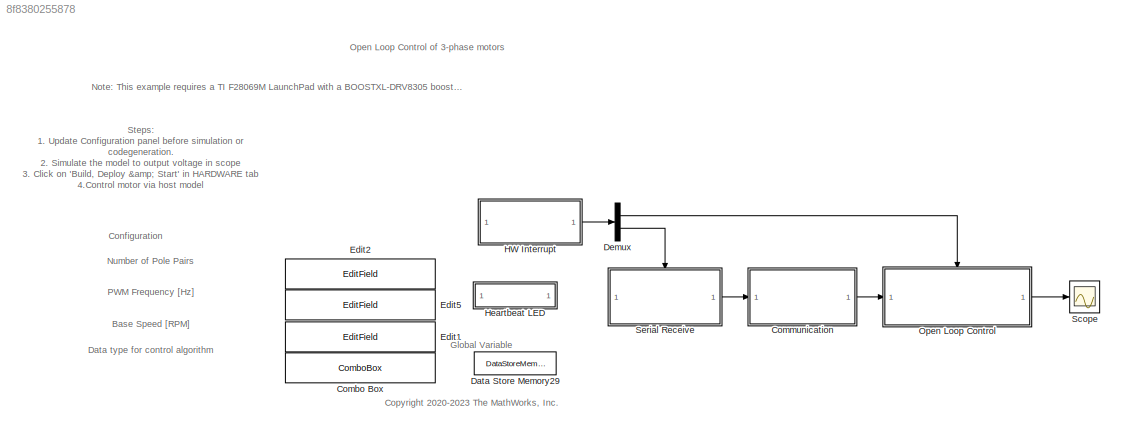
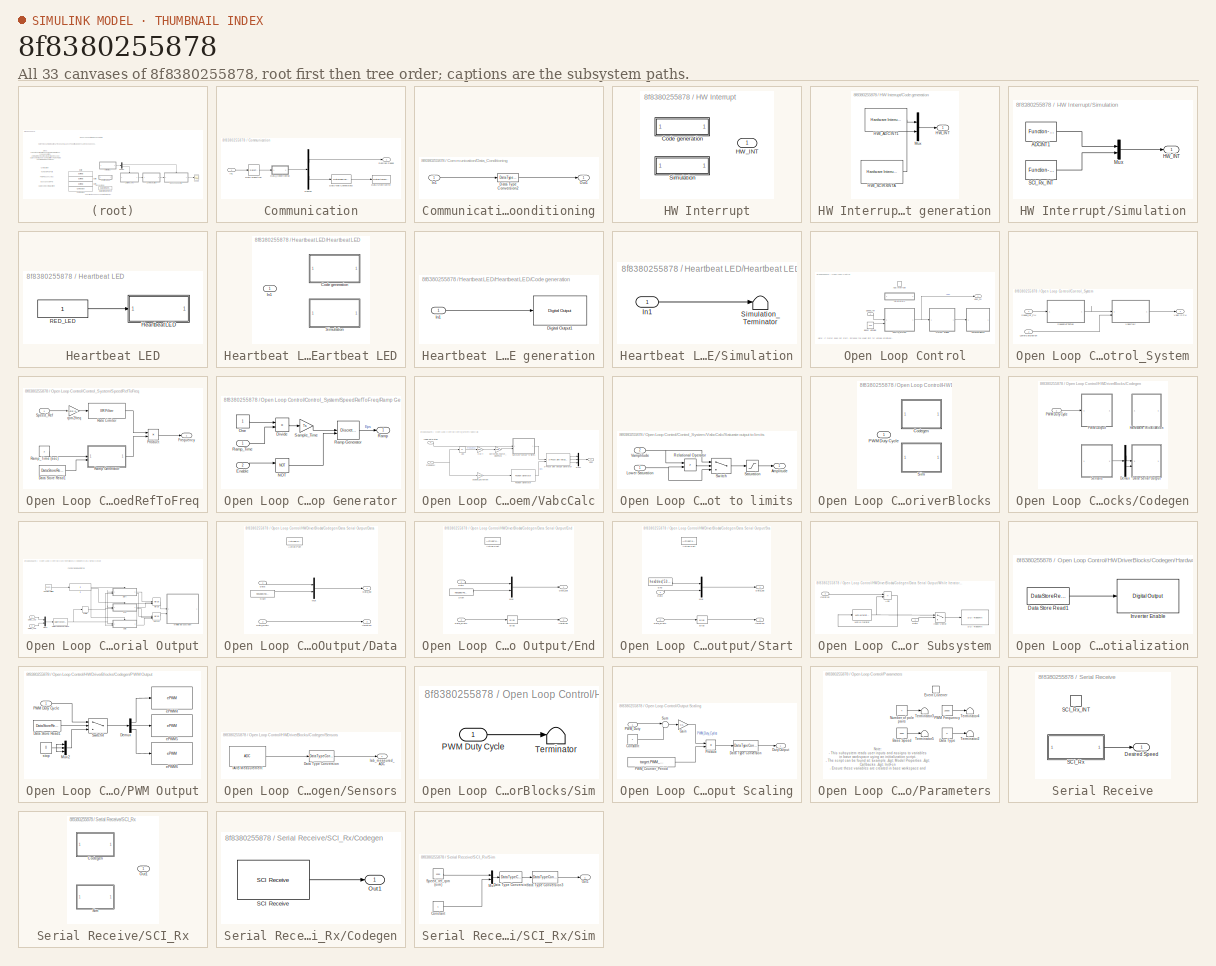
[diagram: thumbnail index - all 33 canvases of the model, root first then tree order]
MODEL slx_8f8380255878
KIND model
CONFIG AbsTol = auto
CONFIG EnableMultiTasking = on
CONFIG FixedStep = auto
CONFIG InitFcn = mcb_open_loop_control_data;\ntarget = mcb_SetProcessorDetails('F28069M',PWM_frequency);
CONFIG MaxStep = auto
CONFIG MinStep = auto
CONFIG RelTol = 1e-3
CONFIG SampleTimeConstraint = Unconstrained
CONFIG SolverName = FixedStepDiscrete
CONFIG StartTime = 0.0
CONFIG StopTime = 8
BLOCK [ComboBox] Combo Box
  LabelPosition = Hide
  SelectedLabel = single
BLOCK [SubSystem] Communication
BLOCK [DataStoreWrite] Communication/Data Store Write
  DataStoreName = Enable
  IndexOptions = Index vector (dialog)
  Indices = 1
  OutputSizes = 1
BLOCK [DataTypeConversion] Communication/Data Type Conversion3
  OutDataTypeStr = boolean
  RndMeth = Simplest
  SaturateOnIntegerOverflow = off
BLOCK [SubSystem] Communication/Data_Conditioning
BLOCK [DataTypeConversion] Communication/Data_Conditioning/Data Type Conversion2
  ConvertRealWorld = Stored Integer (SI)
  OutDataTypeStr = int16
  RndMeth = Simplest
  SaturateOnIntegerOverflow = off
BLOCK [Inport] Communication/Data_Conditioning/In1
BLOCK [Outport] Communication/Data_Conditioning/Out1
  VectorParamsAs1DForOutWhenUnconnected = off
BLOCK [Demux] Communication/Demux
  Outputs = 2
BLOCK [Outport] Communication/Desired Speed
  VectorParamsAs1DForOutWhenUnconnected = off
BLOCK [Inport] Communication/In1
BLOCK [RateTransition] Communication/Rate Transition
  Deterministic = off
  InitialCondition = [1228 0]
  OutPortSampleTime = Ts
BLOCK [DataStoreMemory] Data Store Memory29
  DataStoreName = Enable
  OutDataTypeStr = boolean
  ShowAdditionalParam = off
BLOCK [Demux] Demux
  Outputs = 2
BLOCK [EditField] Edit1
  Alignment = Center
  LabelPosition = Hide
  ShowInitialText = on
BLOCK [EditField] Edit2
  Alignment = Center
  LabelPosition = Hide
  ShowInitialText = on
BLOCK [EditField] Edit5
  Alignment = Center
  LabelPosition = Hide
  ShowInitialText = on
BLOCK [SubSystem] HW Interrupt
  Variant = on
  VariantControlMode = sim codegen switching
BLOCK [SubSystem] HW Interrupt/Code generation
  VariantControl = (codegen)
BLOCK [Reference] HW Interrupt/Code generation/HWI_ADCINT1  REF=svdschedulerlib/Hardware Interrupt v2
  LibrarySourceBlock = c2000lib/Scheduling/Hardware Interrupt
  SourceBlock = svdschedulerlib/Hardware Interrupt v2
  SourceType = HardwareInterrupt
  UserDataPersistent = on
BLOCK [Reference] HW Interrupt/Code generation/HWI_SCIRXINTA  REF=svdschedulerlib/Hardware Interrupt v2
  LibrarySourceBlock = c2000lib/Scheduling/Hardware Interrupt
  SourceBlock = svdschedulerlib/Hardware Interrupt v2
  SourceType = HardwareInterrupt
  UserDataPersistent = on
BLOCK [Outport] HW Interrupt/Code generation/HW_INT
BLOCK [Mux] HW Interrupt/Code generation/Mux
  DisplayOption = bar
  Inputs = 2
BLOCK [Outport] HW Interrupt/HW_INT
  OutputFunctionCall = on
BLOCK [SubSystem] HW Interrupt/Simulation
  VariantControl = (sim)
BLOCK [Reference] HW Interrupt/Simulation/ADCINT1  REF=simulink/Ports &
Subsystems/Function-Call
Generator
  SourceBlock = simulink/Ports &\nSubsystems/Function-Call\nGenerator
  SourceType = Function-Call Generator
BLOCK [Outport] HW Interrupt/Simulation/HW_INT
BLOCK [Mux] HW Interrupt/Simulation/Mux
  DisplayOption = bar
  Inputs = 2
BLOCK [Reference] HW Interrupt/Simulation/SCI_Rx_INT  REF=simulink/Ports &
Subsystems/Function-Call
Generator
  SourceBlock = simulink/Ports &\nSubsystems/Function-Call\nGenerator
  SourceType = Function-Call Generator
BLOCK [SubSystem] Heartbeat LED
  TreatAsAtomicUnit = on
BLOCK [SubSystem] Heartbeat LED/Heartbeat LED
  Variant = on
  VariantControlMode = sim codegen switching
BLOCK [SubSystem] Heartbeat LED/Heartbeat LED/Code generation
  VariantControl = (codegen)
BLOCK [Reference] Heartbeat LED/Heartbeat LED/Code generation/Digital Output1  REF=c2806xlib/Digital Output
  SourceBlock = c2806xlib/Digital Output
  SourceType = C2806x GPIO Digital Output
  UserDataPersistent = on
BLOCK [Inport] Heartbeat LED/Heartbeat LED/Code generation/In1
BLOCK [Inport] Heartbeat LED/Heartbeat LED/In1
BLOCK [SubSystem] Heartbeat LED/Heartbeat LED/Simulation
  VariantControl = (sim)
BLOCK [Inport] Heartbeat LED/Heartbeat LED/Simulation/In1
BLOCK [Terminator] Heartbeat LED/Heartbeat LED/Simulation/Simulation_Terminator
BLOCK [Constant] Heartbeat LED/RED_LED
  OutDataTypeStr = uint16
  SampleTime = 0.5
BLOCK [SubSystem] Open Loop Control
  RTWMemSecFuncExecute = code_ramfuncs
BLOCK [TriggerPort] Open Loop Control/ADC Interrupt
  StatesWhenEnabling = held
  TriggerType = function-call
  VariantControl = Variant
BLOCK [Constant] Open Loop Control/Boost Voltage
  OutDataTypeStr = dataType
  Value = 0.15
BLOCK [SubSystem] Open Loop Control/Control_System
BLOCK [Inport] Open Loop Control/Control_System/LowerSaturation
  Port = 2
BLOCK [SubSystem] Open Loop Control/Control_System/SpeedRefToFreq
BLOCK [DataStoreRead] Open Loop Control/Control_System/SpeedRefToFreq/Data Store Read1
  DataStoreName = Enable
  IndexOptions = Index vector (dialog)
  Indices = 1
  OutputSizes = 1
BLOCK [Outport] Open Loop Control/Control_System/SpeedRefToFreq/Frequency
BLOCK [Product] Open Loop Control/Control_System/SpeedRefToFreq/Product
  OutDataTypeStr = Inherit: Same as first input
  RndMeth = Simplest
BLOCK [SubSystem] Open Loop Control/Control_System/SpeedRefToFreq/Ramp Generator
BLOCK [Product] Open Loop Control/Control_System/SpeedRefToFreq/Ramp Generator/Divide
  Inputs = */
  OutDataTypeStr = Inherit: Same as first input
  RndMeth = Simplest
BLOCK [Inport] Open Loop Control/Control_System/SpeedRefToFreq/Ramp Generator/Enable
  Port = 2
BLOCK [Logic] Open Loop Control/Control_System/SpeedRefToFreq/Ramp Generator/NOT
  AllPortsSameDT = off
  IconShape = distinctive
  Operator = NOT
  OutDataTypeStr = boolean
BLOCK [Constant] Open Loop Control/Control_System/SpeedRefToFreq/Ramp Generator/One
  OutDataTypeStr = dataType
  SampleTime = -1
BLOCK [Outport] Open Loop Control/Control_System/SpeedRefToFreq/Ramp Generator/Ramp
BLOCK [DiscreteIntegrator] Open Loop Control/Control_System/SpeedRefToFreq/Ramp Generator/Ramp Generator
  ExternalReset = sampled level
  ICPrevOutput = DiscIntNeverNeededParam
  ICPrevScaledInput = DiscIntNeverNeededParam
  IntegratorMethod = Accumulation: Forward Euler
  LimitOutput = on
  LowerSaturationLimit = 0
  OutDataTypeStr = dataType
  RndMeth = Simplest
  SampleTime = -1
  UpperSaturationLimit = 1
  gainval = 1
BLOCK [Inport] Open Loop Control/Control_System/SpeedRefToFreq/Ramp Generator/Ramp_Time
BLOCK [Gain] Open Loop Control/Control_System/SpeedRefToFreq/Ramp Generator/Sample_Time
  Gain = Ts
  OutDataTypeStr = Inherit: Same as input
  RndMeth = Simplest
BLOCK [Constant] Open Loop Control/Control_System/SpeedRefToFreq/Ramp_Time (sec)
  OutDataTypeStr = dataType
  SampleTime = -1
  Value = 3
BLOCK [Reference] Open Loop Control/Control_System/SpeedRefToFreq/Rate Limiter  REF=mcbcontrolslib/IIR Filter
  SourceBlock = mcbcontrolslib/IIR Filter
  SourceType = IIR Filter
BLOCK [Inport] Open Loop Control/Control_System/SpeedRefToFreq/Speed_Ref
BLOCK [Gain] Open Loop Control/Control_System/SpeedRefToFreq/rpm2freq
  Gain = motor.polePairs/60
  OutDataTypeStr = dataType
  RndMeth = Simplest
BLOCK [Inport] Open Loop Control/Control_System/Speed_ref_PU
BLOCK [Outport] Open Loop Control/Control_System/Vabc in PU
  VectorParamsAs1DForOutWhenUnconnected = off
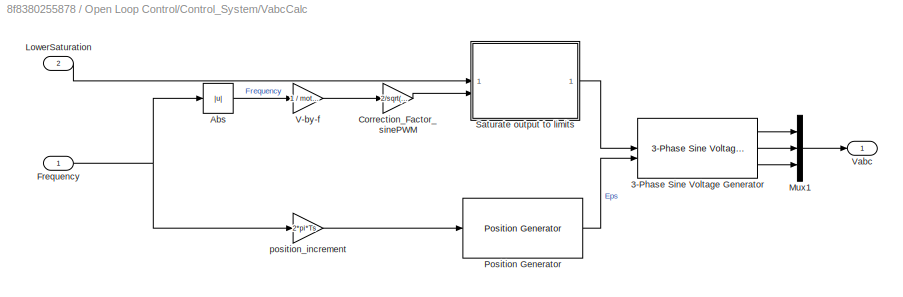
BLOCK [SubSystem] Open Loop Control/Control_System/VabcCalc
BLOCK [Reference] Open Loop Control/Control_System/VabcCalc/3-Phase Sine Voltage Generator  REF=mcbcontrolslib/3-Phase Sine Voltage Generator
  SourceBlock = mcbcontrolslib/3-Phase Sine Voltage Generator
  SourceType = 3-Phase Sine Voltage Generator
BLOCK [Abs] Open Loop Control/Control_System/VabcCalc/Abs
  RndMeth = Simplest
  SaturateOnIntegerOverflow = off
BLOCK [Gain] Open Loop Control/Control_System/VabcCalc/Correction_Factor_sinePWM
  Gain = 2/sqrt(3)
  OutDataTypeStr = Inherit: Same as input
  RndMeth = Simplest
BLOCK [Inport] Open Loop Control/Control_System/VabcCalc/Frequency
BLOCK [Inport] Open Loop Control/Control_System/VabcCalc/LowerSaturation
  Port = 2
BLOCK [Mux] Open Loop Control/Control_System/VabcCalc/Mux1
  DisplayOption = bar
  Inputs = 3
BLOCK [Reference] Open Loop Control/Control_System/VabcCalc/Position Generator  REF=mcbcontrolslib/Position Generator
  SourceBlock = mcbcontrolslib/Position Generator
  SourceType = Position Generator
BLOCK [SubSystem] Open Loop Control/Control_System/VabcCalc/Saturate output to limits
BLOCK [Outport] Open Loop Control/Control_System/VabcCalc/Saturate output to limits/Amplitude
BLOCK [Inport] Open Loop Control/Control_System/VabcCalc/Saturate output to limits/Lower Saturation
BLOCK [RelationalOperator] Open Loop Control/Control_System/VabcCalc/Saturate output to limits/Relational Operator
  InputSameDT = off
  Operator = >
  OutDataTypeStr = boolean
  RndMeth = Simplest
BLOCK [Saturate] Open Loop Control/Control_System/VabcCalc/Saturate output to limits/Saturation
  LowerLimit = 0
  RndMeth = Simplest
  UpperLimit = 0.95
BLOCK [Switch] Open Loop Control/Control_System/VabcCalc/Saturate output to limits/Switch
  Criteria = u2 > Threshold
  InputSameDT = off
  SaturateOnIntegerOverflow = off
BLOCK [Inport] Open Loop Control/Control_System/VabcCalc/Saturate output to limits/Vamplitude
  Port = 2
BLOCK [Gain] Open Loop Control/Control_System/VabcCalc/V-by-f
  Gain = 1 / motor.base_freq
  OutDataTypeStr = Inherit: Same as input
  RndMeth = Simplest
BLOCK [Outport] Open Loop Control/Control_System/VabcCalc/Vabc
BLOCK [Gain] Open Loop Control/Control_System/VabcCalc/position_increment
  Gain = 2*pi*Ts
  OutDataTypeStr = Inherit: Same as input
  RndMeth = Simplest
BLOCK [SubSystem] Open Loop Control/HWDriverBlocks
  Variant = on
  VariantControlMode = sim codegen switching
BLOCK [SubSystem] Open Loop Control/HWDriverBlocks/Codegen
  VariantControl = (codegen)
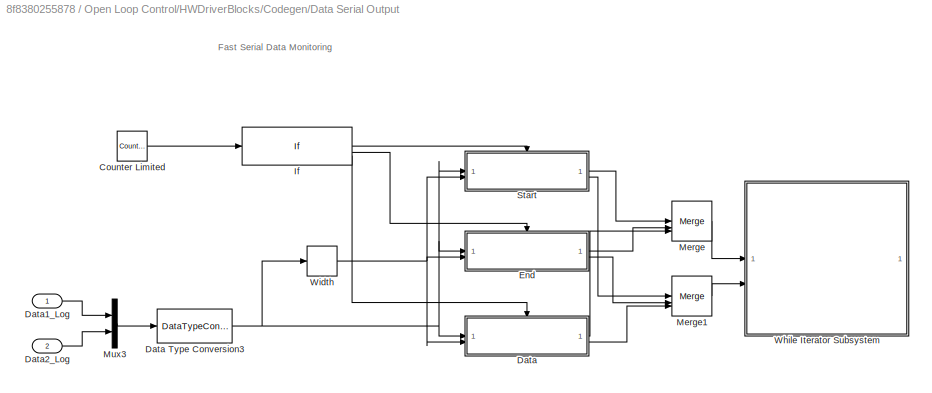
BLOCK [SubSystem] Open Loop Control/HWDriverBlocks/Codegen/Data Serial Output
BLOCK [Reference] Open Loop Control/HWDriverBlocks/Codegen/Data Serial Output/Counter Limited  REF=simulink/Sources/Counter
Limited
  SourceBlock = simulink/Sources/Counter\nLimited
  SourceType = Counter Limited
BLOCK [SubSystem] Open Loop Control/HWDriverBlocks/Codegen/Data Serial Output/Data
  TreatAsAtomicUnit = on
BLOCK [DataTypeConversion] Open Loop Control/HWDriverBlocks/Codegen/Data Serial Output/Data Type Conversion3
  ConvertRealWorld = Stored Integer (SI)
  OutDataTypeStr = uint16
  RndMeth = Floor
  SaturateOnIntegerOverflow = off
BLOCK [ActionPort] Open Loop Control/HWDriverBlocks/Codegen/Data Serial Output/Data/Action Port
BLOCK [Inport] Open Loop Control/HWDriverBlocks/Codegen/Data Serial Output/Data/Data
BLOCK [Outport] Open Loop Control/HWDriverBlocks/Codegen/Data Serial Output/Data/Data_out
  VectorParamsAs1DForOutWhenUnconnected = off
BLOCK [Inport] Open Loop Control/HWDriverBlocks/Codegen/Data Serial Output/Data/Data_width
  Port = 2
BLOCK [Outport] Open Loop Control/HWDriverBlocks/Codegen/Data Serial Output/Data/Iteration
  Port = 2
  VectorParamsAs1DForOutWhenUnconnected = off
BLOCK [Mux] Open Loop Control/HWDriverBlocks/Codegen/Data Serial Output/Data/Mux
  DisplayOption = bar
  Inputs = 2
BLOCK [Constant] Open Loop Control/HWDriverBlocks/Codegen/Data Serial Output/Data/Start
  OutDataTypeStr = uint16
  Value = hex2dec('0000')
BLOCK [Inport] Open Loop Control/HWDriverBlocks/Codegen/Data Serial Output/Data1_Log
BLOCK [Inport] Open Loop Control/HWDriverBlocks/Codegen/Data Serial Output/Data2_Log
  Port = 2
BLOCK [SubSystem] Open Loop Control/HWDriverBlocks/Codegen/Data Serial Output/End
  TreatAsAtomicUnit = on
BLOCK [ActionPort] Open Loop Control/HWDriverBlocks/Codegen/Data Serial Output/End/Action Port
BLOCK [Bias] Open Loop Control/HWDriverBlocks/Codegen/Data Serial Output/End/Bias
  Bias = 1
  SaturateOnIntegerOverflow = off
BLOCK [Inport] Open Loop Control/HWDriverBlocks/Codegen/Data Serial Output/End/Data
BLOCK [Outport] Open Loop Control/HWDriverBlocks/Codegen/Data Serial Output/End/Data_out
  VectorParamsAs1DForOutWhenUnconnected = off
BLOCK [Inport] Open Loop Control/HWDriverBlocks/Codegen/Data Serial Output/End/Data_width
  Port = 2
BLOCK [Outport] Open Loop Control/HWDriverBlocks/Codegen/Data Serial Output/End/Iteration
  Port = 2
  VectorParamsAs1DForOutWhenUnconnected = off
BLOCK [Mux] Open Loop Control/HWDriverBlocks/Codegen/Data Serial Output/End/Mux
  DisplayOption = bar
  Inputs = 2
BLOCK [Constant] Open Loop Control/HWDriverBlocks/Codegen/Data Serial Output/End/Start
  OutDataTypeStr = uint16
  Value = hex2dec('4545')
BLOCK [If] Open Loop Control/HWDriverBlocks/Codegen/Data Serial Output/If
  ElseIfExpressions = u1 == 599
  IfExpression = u1 == 0
BLOCK [Merge] Open Loop Control/HWDriverBlocks/Codegen/Data Serial Output/Merge
  Inputs = 3
BLOCK [Merge] Open Loop Control/HWDriverBlocks/Codegen/Data Serial Output/Merge1
  Inputs = 3
BLOCK [Mux] Open Loop Control/HWDriverBlocks/Codegen/Data Serial Output/Mux3
  DisplayOption = bar
  Inputs = 2
BLOCK [SubSystem] Open Loop Control/HWDriverBlocks/Codegen/Data Serial Output/Start
  TreatAsAtomicUnit = on
BLOCK [ActionPort] Open Loop Control/HWDriverBlocks/Codegen/Data Serial Output/Start/Action Port
BLOCK [Bias] Open Loop Control/HWDriverBlocks/Codegen/Data Serial Output/Start/Bias
  Bias = 1
  SaturateOnIntegerOverflow = off
BLOCK [Inport] Open Loop Control/HWDriverBlocks/Codegen/Data Serial Output/Start/Data
BLOCK [Outport] Open Loop Control/HWDriverBlocks/Codegen/Data Serial Output/Start/Data_out
  VectorParamsAs1DForOutWhenUnconnected = off
BLOCK [Inport] Open Loop Control/HWDriverBlocks/Codegen/Data Serial Output/Start/Data_width
  Port = 2
BLOCK [Constant] Open Loop Control/HWDriverBlocks/Codegen/Data Serial Output/Start/End
  OutDataTypeStr = uint16
  Value = hex2dec('5353')
BLOCK [Outport] Open Loop Control/HWDriverBlocks/Codegen/Data Serial Output/Start/Iteration
  Port = 2
  VectorParamsAs1DForOutWhenUnconnected = off
BLOCK [Mux] Open Loop Control/HWDriverBlocks/Codegen/Data Serial Output/Start/Mux
  DisplayOption = bar
  Inputs = 2
BLOCK [SubSystem] Open Loop Control/HWDriverBlocks/Codegen/Data Serial Output/While Iterator Subsystem
  TreatAsAtomicUnit = on
BLOCK [Sum] Open Loop Control/HWDriverBlocks/Codegen/Data Serial Output/While Iterator Subsystem/Add
  IconShape = rectangular
  Inputs = +-
  OutDataTypeStr = Inherit: Same as first input
BLOCK [Inport] Open Loop Control/HWDriverBlocks/Codegen/Data Serial Output/While Iterator Subsystem/Data
BLOCK [MultiPortSwitch] Open Loop Control/HWDriverBlocks/Codegen/Data Serial Output/While Iterator Subsystem/Index Vector
  InputSameDT = off
  Inputs = 1
  SaturateOnIntegerOverflow = off
BLOCK [Inport] Open Loop Control/HWDriverBlocks/Codegen/Data Serial Output/While Iterator Subsystem/Iteration
  Port = 2
BLOCK [Reference] Open Loop Control/HWDriverBlocks/Codegen/Data Serial Output/While Iterator Subsystem/SCI Transmit  REF=c280xlib/SCI Transmit
  SourceBlock = c280xlib/SCI Transmit
  SourceType = C28x SCI Transmit
BLOCK [WhileIterator] Open Loop Control/HWDriverBlocks/Codegen/Data Serial Output/While Iterator Subsystem/While Iterator
  MaxIters = -1
  OutputDataType = int16
  ShowIterationPort = on
  WhileBlockType = do-while
BLOCK [Width] Open Loop Control/HWDriverBlocks/Codegen/Data Serial Output/Width
  DataType = uint16
  OutDataTypeMode = All ports same datatype
BLOCK [Demux] Open Loop Control/HWDriverBlocks/Codegen/Demux
  Outputs = 2
BLOCK [SubSystem] Open Loop Control/HWDriverBlocks/Codegen/Hardware Initialization
BLOCK [DataStoreRead] Open Loop Control/HWDriverBlocks/Codegen/Hardware Initialization/Data Store Read1
  DataStoreName = Enable
  IndexOptions = Index vector (dialog)
  Indices = 1
  OutputSizes = 1
BLOCK [Reference] Open Loop Control/HWDriverBlocks/Codegen/Hardware Initialization/Inverter Enable  REF=c2806xlib/Digital Output
  SourceBlock = c2806xlib/Digital Output
  SourceType = C2806x GPIO Digital Output
  UserDataPersistent = on
BLOCK [Inport] Open Loop Control/HWDriverBlocks/Codegen/PWM Duty Cycle
BLOCK [SubSystem] Open Loop Control/HWDriverBlocks/Codegen/PWM Output
BLOCK [DataStoreRead] Open Loop Control/HWDriverBlocks/Codegen/PWM Output/Data Store Read1
  DataStoreName = Enable
  IndexOptions = Index vector (dialog)
  Indices = 1
  OutputSizes = 1
BLOCK [Demux] Open Loop Control/HWDriverBlocks/Codegen/PWM Output/Demux
  Outputs = 3
BLOCK [Mux] Open Loop Control/HWDriverBlocks/Codegen/PWM Output/Mux2
  DisplayOption = bar
  Inputs = 3
BLOCK [Inport] Open Loop Control/HWDriverBlocks/Codegen/PWM Output/PWM Duty Cycle
BLOCK [Switch] Open Loop Control/HWDriverBlocks/Codegen/PWM Output/Switch4
  InputSameDT = off
  RndMeth = Simplest
  SaturateOnIntegerOverflow = off
  Threshold = 0.5
BLOCK [Reference] Open Loop Control/HWDriverBlocks/Codegen/PWM Output/ePWM4  REF=c2802xlib/ePWM
  SourceBlock = c2802xlib/ePWM
  SourceType = ePWM Type 1-4
BLOCK [Reference] Open Loop Control/HWDriverBlocks/Codegen/PWM Output/ePWM5  REF=c2802xlib/ePWM
  SourceBlock = c2802xlib/ePWM
  SourceType = ePWM Type 1-4
BLOCK [Reference] Open Loop Control/HWDriverBlocks/Codegen/PWM Output/ePWM6  REF=c2802xlib/ePWM
  SourceBlock = c2802xlib/ePWM
  SourceType = ePWM Type 1-4
BLOCK [Constant] Open Loop Control/HWDriverBlocks/Codegen/PWM Output/stop
  OutDataTypeStr = single
  Value = 0
BLOCK [SubSystem] Open Loop Control/HWDriverBlocks/Codegen/Sensors
BLOCK [DataTypeConversion] Open Loop Control/HWDriverBlocks/Codegen/Sensors/Data Type Conversion
  ConvertRealWorld = Stored Integer (SI)
  OutDataTypeStr = int32
  RndMeth = Floor
  SaturateOnIntegerOverflow = off
BLOCK [Reference] Open Loop Control/HWDriverBlocks/Codegen/Sensors/IA//IB Measurement  REF=c2802xlib/ADC
  SourceBlock = c2802xlib/ADC
  SourceType = ADC Type 3-5
  UserDataPersistent = on
BLOCK [Outport] Open Loop Control/HWDriverBlocks/Codegen/Sensors/Iab_measured_ADC
  InitialOutput = 0
  VectorParamsAs1DForOutWhenUnconnected = off
BLOCK [Inport] Open Loop Control/HWDriverBlocks/PWM Duty Cycle
BLOCK [SubSystem] Open Loop Control/HWDriverBlocks/Sim
  VariantControl = (sim)
BLOCK [Inport] Open Loop Control/HWDriverBlocks/Sim/PWM Duty Cycle
BLOCK [Terminator] Open Loop Control/HWDriverBlocks/Sim/Terminator
BLOCK [SubSystem] Open Loop Control/Output Scaling
BLOCK [Constant] Open Loop Control/Output Scaling/Constant
  OutDataTypeStr = dataType
BLOCK [DataTypeConversion] Open Loop Control/Output Scaling/Data Type Conversion
  OutDataTypeStr = uint16
  RndMeth = Floor
BLOCK [Outport] Open Loop Control/Output Scaling/Duty Output
BLOCK [Gain] Open Loop Control/Output Scaling/Gain
  Gain = 0.5
  OutDataTypeStr = Inherit: Same as input
  RndMeth = Simplest
BLOCK [Constant] Open Loop Control/Output Scaling/PWM_Counter_Period
  OutDataTypeStr = dataType
  SampleTime = -1
  Value = target.PWM_Counter_Period
BLOCK [Inport] Open Loop Control/Output Scaling/PWM_Duty
BLOCK [Product] Open Loop Control/Output Scaling/Product
  OutDataTypeStr = Inherit: Same as first input
  RndMeth = Simplest
BLOCK [Sum] Open Loop Control/Output Scaling/Sum
  AccumDataTypeStr = Inherit: Same as first input
  Inputs = |++
BLOCK [SubSystem] Open Loop Control/Parameters
BLOCK [Constant] Open Loop Control/Parameters/Base Speed
  Value = 4000
BLOCK [Constant] Open Loop Control/Parameters/Data Type
  Value = 0
BLOCK [EventListener] Open Loop Control/Parameters/Event Listener
  DisableCoverage = on
  EventName = reset
BLOCK [Constant] Open Loop Control/Parameters/Number of pole pairs
  Value = 4
BLOCK [Constant] Open Loop Control/Parameters/PWM Frequency
  Value = 20000
BLOCK [Terminator] Open Loop Control/Parameters/Terminator2
BLOCK [Terminator] Open Loop Control/Parameters/Terminator3
BLOCK [Terminator] Open Loop Control/Parameters/Terminator4
BLOCK [Terminator] Open Loop Control/Parameters/Terminator5
BLOCK [Inport] Open Loop Control/Speed_ref
BLOCK [Outport] Open Loop Control/Vabc_PU
  VectorParamsAs1DForOutWhenUnconnected = off
BLOCK [Scope] Scope
  Floating = off
  NumInputPorts = 1
  ScopeSpecificationString = Simulink.scopes.TimeScopeBlockCfg('CurrentConfiguration', extmgr.ConfigurationSet(extmgr.Configuration('Core','General UI',true),extmgr.Configuration('Core','Source UI',true),extmgr.Configuration('Sources','WiredSimulink',true),extmgr.Configuration('Visuals','Time Domain',true,'SerializedDisplays',{struct('MinYLimReal','-0.43124','MaxYLimReal','0.43122','YLabelReal','','MinYLimMag','0.00000','MaxY...<+1443ch>
BLOCK [SubSystem] Serial Receive
  RTWMemSecFuncExecute = code_ramfuncs
  SystemSampleTime = 1e-3
BLOCK [Outport] Serial Receive/Desired Speed
  VectorParamsAs1DForOutWhenUnconnected = off
BLOCK [SubSystem] Serial Receive/SCI_Rx
  Variant = on
  VariantControlMode = sim codegen switching
BLOCK [SubSystem] Serial Receive/SCI_Rx/Codegen
  VariantControl = (codegen)
BLOCK [Outport] Serial Receive/SCI_Rx/Codegen/Out1
  InitialOutput = [16384 0]
  VectorParamsAs1DForOutWhenUnconnected = off
BLOCK [Reference] Serial Receive/SCI_Rx/Codegen/SCI Receive  REF=c280xlib/SCI Receive
  SourceBlock = c280xlib/SCI Receive
  SourceType = C28x SCI Receive
BLOCK [Outport] Serial Receive/SCI_Rx/Out1
  InitialOutput = [16384 0]
  VectorParamsAs1DForOutWhenUnconnected = off
BLOCK [SubSystem] Serial Receive/SCI_Rx/Sim
  VariantControl = (sim)
BLOCK [Constant] Serial Receive/SCI_Rx/Sim/Constant
  OutDataTypeStr = dataType
BLOCK [DataTypeConversion] Serial Receive/SCI_Rx/Sim/Data Type Conversion
  OutDataTypeStr = int16
  RndMeth = Simplest
  SaturateOnIntegerOverflow = off
BLOCK [DataTypeConversion] Serial Receive/SCI_Rx/Sim/Data Type Conversion3
  ConvertRealWorld = Stored Integer (SI)
  OutDataTypeStr = uint16
  RndMeth = Simplest
  SaturateOnIntegerOverflow = off
BLOCK [Mux] Serial Receive/SCI_Rx/Sim/Mux
  DisplayOption = bar
  Inputs = 2
BLOCK [Outport] Serial Receive/SCI_Rx/Sim/Out1
BLOCK [Constant] Serial Receive/SCI_Rx/Sim/Speed_ref_rpm (sim)
  OutDataTypeStr = dataType
  SampleTime = -1
  Value = 1200
BLOCK [TriggerPort] Serial Receive/SCI_Rx_INT
  StatesWhenEnabling = held
  TriggerType = function-call
  VariantControl = Variant
ANNOTATION (root): Base Speed [RPM]
ANNOTATION (root): Data type for control algorithm
ANNOTATION (root): Number of Pole Pairs
ANNOTATION (root): PWM Frequency [Hz]
ANNOTATION (root): <copyright redacted>
ANNOTATION (root): Steps : 1. Update Configuration panel before simulation or codegeneration. 2. Simulate the model to output voltage in scope 3. Click on ' Build, Deploy & Start ' in HARDWARE tab 4.Control motor via host model 5. Learn more about this example
ANNOTATION (root): Configuration
ANNOTATION (root): Global Variable
ANNOTATION (root): Note: This example requires a TI F28069M LaunchPad with a BOOSTXL-DRV8305 booster pack
ANNOTATION (root): Open Loop Control of 3-phase motors
ANNOTATION Open Loop Control: Note: If motor does not start, increase the 'Lower limit for voltage amplitude' value
ANNOTATION Open Loop Control/HWDriverBlocks/Codegen/Data Serial Output: Fast Serial Data Monitoring
ANNOTATION Open Loop Control/Parameters: Note: - This subsystem reads user inputs and assigns to variables in base workspace using an initialization script. - The script can be found at: Example -> Model Properties -> Callbacks -> InitFcn - Ensure these variables are created in base workspace and loaded with correct values for algorithm export (generate code only for control algorithm) or customized models - The variables are listed in i...<+12ch>
LINE Communication/Data Type Conversion3:1 -> Communication/Data Store Write:1
LINE Communication/Data_Conditioning/Data Type Conversion2:1 -> Communication/Data_Conditioning/Out1:1
LINE Communication/Data_Conditioning/In1:1 -> Communication/Data_Conditioning/Data Type Conversion2:1
LINE Communication/Data_Conditioning:1 -> Communication/Demux:1
LINE Communication/Demux:1 -> Communication/Desired Speed:1
LINE Communication/Demux:2 -> Communication/Data Type Conversion3:1
LINE Communication/In1:1 -> Communication/Rate Transition:1
LINE Communication/Rate Transition:1 -> Communication/Data_Conditioning:1
LINE Communication:1 -> Open Loop Control:1
LINE Demux:1 -> Open Loop Control:trigger
LINE Demux:2 -> Serial Receive:trigger
LINE HW Interrupt/Code generation/HWI_ADCINT1:1 -> HW Interrupt/Code generation/Mux:1
LINE HW Interrupt/Code generation/HWI_SCIRXINTA:1 -> HW Interrupt/Code generation/Mux:2
LINE HW Interrupt/Code generation/Mux:1 -> HW Interrupt/Code generation/HW_INT:1
LINE HW Interrupt/Simulation/ADCINT1:1 -> HW Interrupt/Simulation/Mux:1
LINE HW Interrupt/Simulation/Mux:1 -> HW Interrupt/Simulation/HW_INT:1
LINE HW Interrupt/Simulation/SCI_Rx_INT:1 -> HW Interrupt/Simulation/Mux:2
LINE HW Interrupt:1 -> Demux:1
LINE Heartbeat LED/Heartbeat LED/Code generation/In1:1 -> Heartbeat LED/Heartbeat LED/Code generation/Digital Output1:1
LINE Heartbeat LED/Heartbeat LED/Simulation/In1:1 -> Heartbeat LED/Heartbeat LED/Simulation/Simulation_Terminator:1
LINE Heartbeat LED/RED_LED:1 -> Heartbeat LED/Heartbeat LED:1
LINE Open Loop Control/Boost Voltage:1 -> Open Loop Control/Control_System:2
LINE Open Loop Control/Control_System/LowerSaturation:1 -> Open Loop Control/Control_System/VabcCalc:2
LINE Open Loop Control/Control_System/SpeedRefToFreq/Data Store Read1:1 -> Open Loop Control/Control_System/SpeedRefToFreq/Ramp Generator:2
LINE Open Loop Control/Control_System/SpeedRefToFreq/Product:1 -> Open Loop Control/Control_System/SpeedRefToFreq/Frequency:1
LINE Open Loop Control/Control_System/SpeedRefToFreq/Ramp Generator/Divide:1 -> Open Loop Control/Control_System/SpeedRefToFreq/Ramp Generator/Sample_Time:1
LINE Open Loop Control/Control_System/SpeedRefToFreq/Ramp Generator/Enable:1 -> Open Loop Control/Control_System/SpeedRefToFreq/Ramp Generator/NOT:1
LINE Open Loop Control/Control_System/SpeedRefToFreq/Ramp Generator/NOT:1 -> Open Loop Control/Control_System/SpeedRefToFreq/Ramp Generator/Ramp Generator:2
LINE Open Loop Control/Control_System/SpeedRefToFreq/Ramp Generator/One:1 -> Open Loop Control/Control_System/SpeedRefToFreq/Ramp Generator/Divide:1
LINE Open Loop Control/Control_System/SpeedRefToFreq/Ramp Generator/Ramp Generator:1 -> Open Loop Control/Control_System/SpeedRefToFreq/Ramp Generator/Ramp:1
LINE Open Loop Control/Control_System/SpeedRefToFreq/Ramp Generator/Ramp_Time:1 -> Open Loop Control/Control_System/SpeedRefToFreq/Ramp Generator/Divide:2
LINE Open Loop Control/Control_System/SpeedRefToFreq/Ramp Generator/Sample_Time:1 -> Open Loop Control/Control_System/SpeedRefToFreq/Ramp Generator/Ramp Generator:1
LINE Open Loop Control/Control_System/SpeedRefToFreq/Ramp Generator:1 -> Open Loop Control/Control_System/SpeedRefToFreq/Product:2
LINE Open Loop Control/Control_System/SpeedRefToFreq/Ramp_Time (sec):1 -> Open Loop Control/Control_System/SpeedRefToFreq/Ramp Generator:1
LINE Open Loop Control/Control_System/SpeedRefToFreq/Rate Limiter:1 -> Open Loop Control/Control_System/SpeedRefToFreq/Product:1
LINE Open Loop Control/Control_System/SpeedRefToFreq/Speed_Ref:1 -> Open Loop Control/Control_System/SpeedRefToFreq/rpm2freq:1
LINE Open Loop Control/Control_System/SpeedRefToFreq/rpm2freq:1 -> Open Loop Control/Control_System/SpeedRefToFreq/Rate Limiter:1
LINE Open Loop Control/Control_System/SpeedRefToFreq:1 -> Open Loop Control/Control_System/VabcCalc:1
LINE Open Loop Control/Control_System/Speed_ref_PU:1 -> Open Loop Control/Control_System/SpeedRefToFreq:1
LINE Open Loop Control/Control_System/VabcCalc/3-Phase Sine Voltage Generator:1 -> Open Loop Control/Control_System/VabcCalc/Mux1:1
LINE Open Loop Control/Control_System/VabcCalc/3-Phase Sine Voltage Generator:2 -> Open Loop Control/Control_System/VabcCalc/Mux1:2
LINE Open Loop Control/Control_System/VabcCalc/3-Phase Sine Voltage Generator:3 -> Open Loop Control/Control_System/VabcCalc/Mux1:3
LINE Open Loop Control/Control_System/VabcCalc/Abs:1 -> Open Loop Control/Control_System/VabcCalc/V-by-f:1
LINE Open Loop Control/Control_System/VabcCalc/Correction_Factor_sinePWM:1 -> Open Loop Control/Control_System/VabcCalc/Saturate output to limits:2
NET Open Loop Control/Control_System/VabcCalc/Frequency:1 -> Open Loop Control/Control_System/VabcCalc/Abs:1, Open Loop Control/Control_System/VabcCalc/position_increment:1
LINE Open Loop Control/Control_System/VabcCalc/LowerSaturation:1 -> Open Loop Control/Control_System/VabcCalc/Saturate output to limits:1
LINE Open Loop Control/Control_System/VabcCalc/Mux1:1 -> Open Loop Control/Control_System/VabcCalc/Vabc:1
LINE Open Loop Control/Control_System/VabcCalc/Position Generator:1 -> Open Loop Control/Control_System/VabcCalc/3-Phase Sine Voltage Generator:2
NET Open Loop Control/Control_System/VabcCalc/Saturate output to limits/Lower Saturation:1 -> Open Loop Control/Control_System/VabcCalc/Saturate output to limits/Relational Operator:2, Open Loop Control/Control_System/VabcCalc/Saturate output to limits/Switch:3
LINE Open Loop Control/Control_System/VabcCalc/Saturate output to limits/Relational Operator:1 -> Open Loop Control/Control_System/VabcCalc/Saturate output to limits/Switch:2
LINE Open Loop Control/Control_System/VabcCalc/Saturate output to limits/Saturation:1 -> Open Loop Control/Control_System/VabcCalc/Saturate output to limits/Amplitude:1
LINE Open Loop Control/Control_System/VabcCalc/Saturate output to limits/Switch:1 -> Open Loop Control/Control_System/VabcCalc/Saturate output to limits/Saturation:1
NET Open Loop Control/Control_System/VabcCalc/Saturate output to limits/Vamplitude:1 -> Open Loop Control/Control_System/VabcCalc/Saturate output to limits/Relational Operator:1, Open Loop Control/Control_System/VabcCalc/Saturate output to limits/Switch:1
LINE Open Loop Control/Control_System/VabcCalc/Saturate output to limits:1 -> Open Loop Control/Control_System/VabcCalc/3-Phase Sine Voltage Generator:1
LINE Open Loop Control/Control_System/VabcCalc/V-by-f:1 -> Open Loop Control/Control_System/VabcCalc/Correction_Factor_sinePWM:1
LINE Open Loop Control/Control_System/VabcCalc/position_increment:1 -> Open Loop Control/Control_System/VabcCalc/Position Generator:1
LINE Open Loop Control/Control_System/VabcCalc:1 -> Open Loop Control/Control_System/Vabc in PU:1
NET Open Loop Control/Control_System:1 -> Open Loop Control/Output Scaling:1, Open Loop Control/Vabc_PU:1
LINE Open Loop Control/HWDriverBlocks/Codegen/Data Serial Output/Counter Limited:1 -> Open Loop Control/HWDriverBlocks/Codegen/Data Serial Output/If:1
NET Open Loop Control/HWDriverBlocks/Codegen/Data Serial Output/Data Type Conversion3:1 -> Open Loop Control/HWDriverBlocks/Codegen/Data Serial Output/Data:1, Open Loop Control/HWDriverBlocks/Codegen/Data Serial Output/End:1, Open Loop Control/HWDriverBlocks/Codegen/Data Serial Output/Start:1, Open Loop Control/HWDriverBlocks/Codegen/Data Serial Output/Width:1
LINE Open Loop Control/HWDriverBlocks/Codegen/Data Serial Output/Data/Data:1 -> Open Loop Control/HWDriverBlocks/Codegen/Data Serial Output/Data/Mux:1
LINE Open Loop Control/HWDriverBlocks/Codegen/Data Serial Output/Data/Data_width:1 -> Open Loop Control/HWDriverBlocks/Codegen/Data Serial Output/Data/Iteration:1
LINE Open Loop Control/HWDriverBlocks/Codegen/Data Serial Output/Data/Mux:1 -> Open Loop Control/HWDriverBlocks/Codegen/Data Serial Output/Data/Data_out:1
LINE Open Loop Control/HWDriverBlocks/Codegen/Data Serial Output/Data/Start:1 -> Open Loop Control/HWDriverBlocks/Codegen/Data Serial Output/Data/Mux:2
LINE Open Loop Control/HWDriverBlocks/Codegen/Data Serial Output/Data1_Log:1 -> Open Loop Control/HWDriverBlocks/Codegen/Data Serial Output/Mux3:1
LINE Open Loop Control/HWDriverBlocks/Codegen/Data Serial Output/Data2_Log:1 -> Open Loop Control/HWDriverBlocks/Codegen/Data Serial Output/Mux3:2
LINE Open Loop Control/HWDriverBlocks/Codegen/Data Serial Output/Data:1 -> Open Loop Control/HWDriverBlocks/Codegen/Data Serial Output/Merge:3
LINE Open Loop Control/HWDriverBlocks/Codegen/Data Serial Output/Data:2 -> Open Loop Control/HWDriverBlocks/Codegen/Data Serial Output/Merge1:3
LINE Open Loop Control/HWDriverBlocks/Codegen/Data Serial Output/End/Bias:1 -> Open Loop Control/HWDriverBlocks/Codegen/Data Serial Output/End/Iteration:1
LINE Open Loop Control/HWDriverBlocks/Codegen/Data Serial Output/End/Data:1 -> Open Loop Control/HWDriverBlocks/Codegen/Data Serial Output/End/Mux:1
LINE Open Loop Control/HWDriverBlocks/Codegen/Data Serial Output/End/Data_width:1 -> Open Loop Control/HWDriverBlocks/Codegen/Data Serial Output/End/Bias:1
LINE Open Loop Control/HWDriverBlocks/Codegen/Data Serial Output/End/Mux:1 -> Open Loop Control/HWDriverBlocks/Codegen/Data Serial Output/End/Data_out:1
LINE Open Loop Control/HWDriverBlocks/Codegen/Data Serial Output/End/Start:1 -> Open Loop Control/HWDriverBlocks/Codegen/Data Serial Output/End/Mux:2
LINE Open Loop Control/HWDriverBlocks/Codegen/Data Serial Output/End:1 -> Open Loop Control/HWDriverBlocks/Codegen/Data Serial Output/Merge:2
LINE Open Loop Control/HWDriverBlocks/Codegen/Data Serial Output/End:2 -> Open Loop Control/HWDriverBlocks/Codegen/Data Serial Output/Merge1:2
LINE Open Loop Control/HWDriverBlocks/Codegen/Data Serial Output/If:1 -> Open Loop Control/HWDriverBlocks/Codegen/Data Serial Output/Start:ifaction
LINE Open Loop Control/HWDriverBlocks/Codegen/Data Serial Output/If:2 -> Open Loop Control/HWDriverBlocks/Codegen/Data Serial Output/End:ifaction
LINE Open Loop Control/HWDriverBlocks/Codegen/Data Serial Output/If:3 -> Open Loop Control/HWDriverBlocks/Codegen/Data Serial Output/Data:ifaction
LINE Open Loop Control/HWDriverBlocks/Codegen/Data Serial Output/Merge1:1 -> Open Loop Control/HWDriverBlocks/Codegen/Data Serial Output/While Iterator Subsystem:2
LINE Open Loop Control/HWDriverBlocks/Codegen/Data Serial Output/Merge:1 -> Open Loop Control/HWDriverBlocks/Codegen/Data Serial Output/While Iterator Subsystem:1
LINE Open Loop Control/HWDriverBlocks/Codegen/Data Serial Output/Mux3:1 -> Open Loop Control/HWDriverBlocks/Codegen/Data Serial Output/Data Type Conversion3:1
LINE Open Loop Control/HWDriverBlocks/Codegen/Data Serial Output/Start/Bias:1 -> Open Loop Control/HWDriverBlocks/Codegen/Data Serial Output/Start/Iteration:1
LINE Open Loop Control/HWDriverBlocks/Codegen/Data Serial Output/Start/Data:1 -> Open Loop Control/HWDriverBlocks/Codegen/Data Serial Output/Start/Mux:2
LINE Open Loop Control/HWDriverBlocks/Codegen/Data Serial Output/Start/Data_width:1 -> Open Loop Control/HWDriverBlocks/Codegen/Data Serial Output/Start/Bias:1
LINE Open Loop Control/HWDriverBlocks/Codegen/Data Serial Output/Start/End:1 -> Open Loop Control/HWDriverBlocks/Codegen/Data Serial Output/Start/Mux:1
LINE Open Loop Control/HWDriverBlocks/Codegen/Data Serial Output/Start/Mux:1 -> Open Loop Control/HWDriverBlocks/Codegen/Data Serial Output/Start/Data_out:1
LINE Open Loop Control/HWDriverBlocks/Codegen/Data Serial Output/Start:1 -> Open Loop Control/HWDriverBlocks/Codegen/Data Serial Output/Merge:1
LINE Open Loop Control/HWDriverBlocks/Codegen/Data Serial Output/Start:2 -> Open Loop Control/HWDriverBlocks/Codegen/Data Serial Output/Merge1:1
LINE Open Loop Control/HWDriverBlocks/Codegen/Data Serial Output/While Iterator Subsystem/Add:1 -> Open Loop Control/HWDriverBlocks/Codegen/Data Serial Output/While Iterator Subsystem/While Iterator:1
LINE Open Loop Control/HWDriverBlocks/Codegen/Data Serial Output/While Iterator Subsystem/Data:1 -> Open Loop Control/HWDriverBlocks/Codegen/Data Serial Output/While Iterator Subsystem/Index Vector:2
LINE Open Loop Control/HWDriverBlocks/Codegen/Data Serial Output/While Iterator Subsystem/Index Vector:1 -> Open Loop Control/HWDriverBlocks/Codegen/Data Serial Output/While Iterator Subsystem/SCI Transmit:1
LINE Open Loop Control/HWDriverBlocks/Codegen/Data Serial Output/While Iterator Subsystem/Iteration:1 -> Open Loop Control/HWDriverBlocks/Codegen/Data Serial Output/While Iterator Subsystem/Add:1
NET Open Loop Control/HWDriverBlocks/Codegen/Data Serial Output/While Iterator Subsystem/While Iterator:1 -> Open Loop Control/HWDriverBlocks/Codegen/Data Serial Output/While Iterator Subsystem/Add:2, Open Loop Control/HWDriverBlocks/Codegen/Data Serial Output/While Iterator Subsystem/Index Vector:1
NET Open Loop Control/HWDriverBlocks/Codegen/Data Serial Output/Width:1 -> Open Loop Control/HWDriverBlocks/Codegen/Data Serial Output/Data:2, Open Loop Control/HWDriverBlocks/Codegen/Data Serial Output/End:2, Open Loop Control/HWDriverBlocks/Codegen/Data Serial Output/Start:2
LINE Open Loop Control/HWDriverBlocks/Codegen/Demux:1 -> Open Loop Control/HWDriverBlocks/Codegen/Data Serial Output:1
LINE Open Loop Control/HWDriverBlocks/Codegen/Demux:2 -> Open Loop Control/HWDriverBlocks/Codegen/Data Serial Output:2
LINE Open Loop Control/HWDriverBlocks/Codegen/Hardware Initialization/Data Store Read1:1 -> Open Loop Control/HWDriverBlocks/Codegen/Hardware Initialization/Inverter Enable:1
LINE Open Loop Control/HWDriverBlocks/Codegen/PWM Duty Cycle:1 -> Open Loop Control/HWDriverBlocks/Codegen/PWM Output:1
LINE Open Loop Control/HWDriverBlocks/Codegen/PWM Output/Data Store Read1:1 -> Open Loop Control/HWDriverBlocks/Codegen/PWM Output/Switch4:2
LINE Open Loop Control/HWDriverBlocks/Codegen/PWM Output/Demux:1 -> Open Loop Control/HWDriverBlocks/Codegen/PWM Output/ePWM4:1
LINE Open Loop Control/HWDriverBlocks/Codegen/PWM Output/Demux:2 -> Open Loop Control/HWDriverBlocks/Codegen/PWM Output/ePWM5:1
LINE Open Loop Control/HWDriverBlocks/Codegen/PWM Output/Demux:3 -> Open Loop Control/HWDriverBlocks/Codegen/PWM Output/ePWM6:1
LINE Open Loop Control/HWDriverBlocks/Codegen/PWM Output/Mux2:1 -> Open Loop Control/HWDriverBlocks/Codegen/PWM Output/Switch4:3
LINE Open Loop Control/HWDriverBlocks/Codegen/PWM Output/PWM Duty Cycle:1 -> Open Loop Control/HWDriverBlocks/Codegen/PWM Output/Switch4:1
LINE Open Loop Control/HWDriverBlocks/Codegen/PWM Output/Switch4:1 -> Open Loop Control/HWDriverBlocks/Codegen/PWM Output/Demux:1
NET Open Loop Control/HWDriverBlocks/Codegen/PWM Output/stop:1 -> Open Loop Control/HWDriverBlocks/Codegen/PWM Output/Mux2:1, Open Loop Control/HWDriverBlocks/Codegen/PWM Output/Mux2:2, Open Loop Control/HWDriverBlocks/Codegen/PWM Output/Mux2:3
LINE Open Loop Control/HWDriverBlocks/Codegen/Sensors/Data Type Conversion:1 -> Open Loop Control/HWDriverBlocks/Codegen/Sensors/Iab_measured_ADC:1
LINE Open Loop Control/HWDriverBlocks/Codegen/Sensors/IA//IB Measurement:1 -> Open Loop Control/HWDriverBlocks/Codegen/Sensors/Data Type Conversion:1
LINE Open Loop Control/HWDriverBlocks/Codegen/Sensors:1 -> Open Loop Control/HWDriverBlocks/Codegen/Demux:1
LINE Open Loop Control/HWDriverBlocks/Sim/PWM Duty Cycle:1 -> Open Loop Control/HWDriverBlocks/Sim/Terminator:1
LINE Open Loop Control/Output Scaling/Constant:1 -> Open Loop Control/Output Scaling/Sum:2
LINE Open Loop Control/Output Scaling/Data Type Conversion:1 -> Open Loop Control/Output Scaling/Duty Output:1
LINE Open Loop Control/Output Scaling/Gain:1 -> Open Loop Control/Output Scaling/Product:1
LINE Open Loop Control/Output Scaling/PWM_Counter_Period:1 -> Open Loop Control/Output Scaling/Product:2
LINE Open Loop Control/Output Scaling/PWM_Duty:1 -> Open Loop Control/Output Scaling/Sum:1
LINE Open Loop Control/Output Scaling/Product:1 -> Open Loop Control/Output Scaling/Data Type Conversion:1
LINE Open Loop Control/Output Scaling/Sum:1 -> Open Loop Control/Output Scaling/Gain:1
LINE Open Loop Control/Output Scaling:1 -> Open Loop Control/HWDriverBlocks:1
LINE Open Loop Control/Parameters/Base Speed:1 -> Open Loop Control/Parameters/Terminator5:1
LINE Open Loop Control/Parameters/Data Type:1 -> Open Loop Control/Parameters/Terminator2:1
LINE Open Loop Control/Parameters/Number of pole pairs:1 -> Open Loop Control/Parameters/Terminator3:1
LINE Open Loop Control/Parameters/PWM Frequency:1 -> Open Loop Control/Parameters/Terminator4:1
LINE Open Loop Control/Speed_ref:1 -> Open Loop Control/Control_System:1
LINE Open Loop Control:1 -> Scope:1
LINE Serial Receive/SCI_Rx/Codegen/SCI Receive:1 -> Serial Receive/SCI_Rx/Codegen/Out1:1
LINE Serial Receive/SCI_Rx/Sim/Constant:1 -> Serial Receive/SCI_Rx/Sim/Mux:2
LINE Serial Receive/SCI_Rx/Sim/Data Type Conversion3:1 -> Serial Receive/SCI_Rx/Sim/Out1:1
LINE Serial Receive/SCI_Rx/Sim/Data Type Conversion:1 -> Serial Receive/SCI_Rx/Sim/Data Type Conversion3:1
LINE Serial Receive/SCI_Rx/Sim/Mux:1 -> Serial Receive/SCI_Rx/Sim/Data Type Conversion:1
LINE Serial Receive/SCI_Rx/Sim/Speed_ref_rpm (sim):1 -> Serial Receive/SCI_Rx/Sim/Mux:1
LINE Serial Receive/SCI_Rx:1 -> Serial Receive/Desired Speed:1
LINE Serial Receive:1 -> Communication:1
note: NET lines group one-source signal fan-out (src -> all destinations, sorted); 1:1 wires keep LINE
